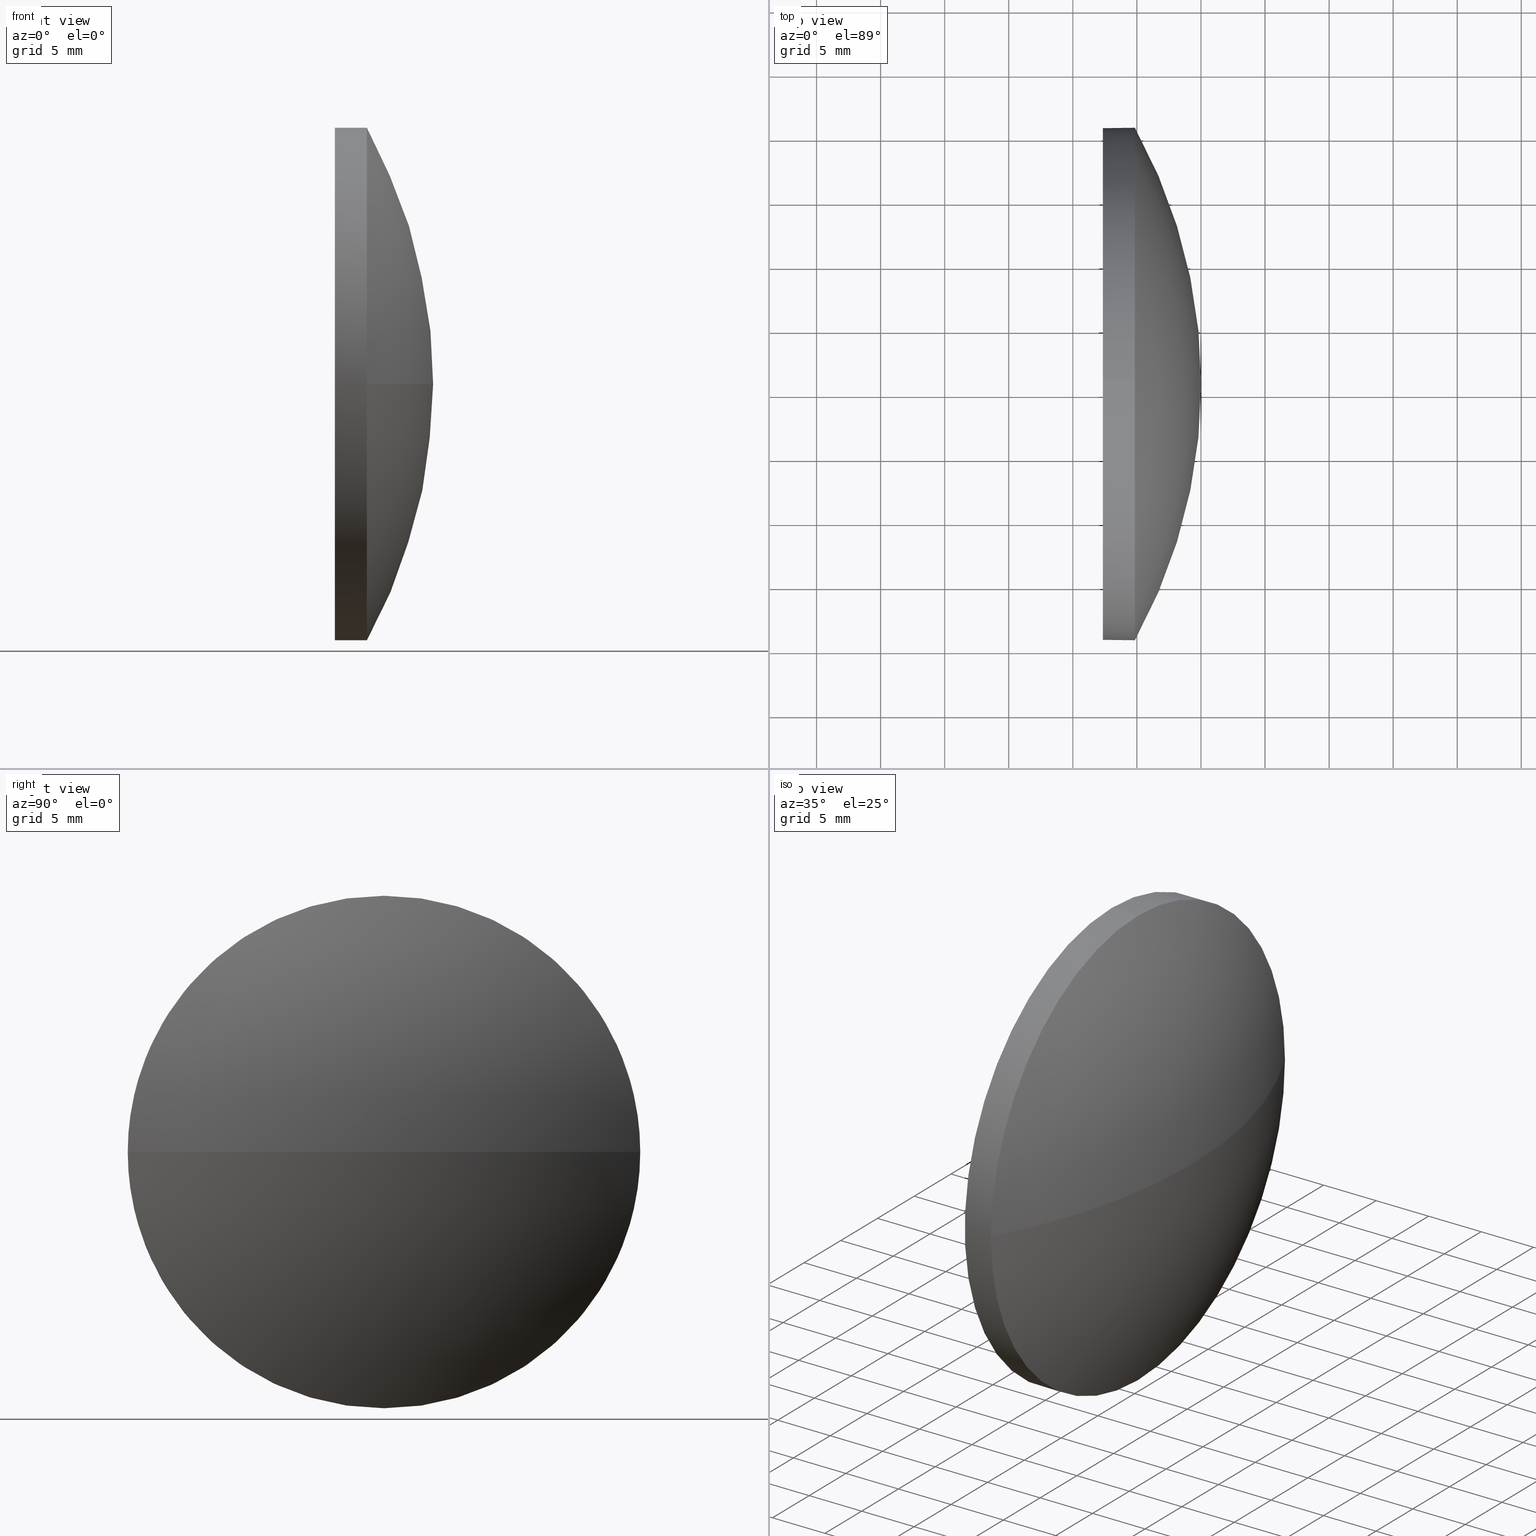
[diagram: canonical four-view strip — front | top / right | iso, engineering-drawing reading convention]
A machine part, canonical four-view strip (front | top / right | iso — engineering-drawing reading convention). The complete STEP part file that produces these views, byte-faithful:
ISO-10303-21;
HEADER;
FILE_DESCRIPTION (( 'STEP AP214' ),
    '1' );
FILE_NAME ('100143.STEP',
    '2019-05-15T06:46:00',
    ( '' ),
    ( '' ),
    'SwSTEP 2.0',
    'SolidWorks 2016',
    '' );
FILE_SCHEMA (( 'AUTOMOTIVE_DESIGN' ));
ENDSEC;

DATA;
#1 = SPHERICAL_SURFACE ( 'NONE', #53, 41.26971953578339500 ) ;
#2 = DIRECTION ( 'NONE',  ( 0.0000000000000000000, 0.0000000000000000000, 1.000000000000000000 ) ) ;
#3 = EDGE_LOOP ( 'NONE', ( #62, #101, #54, #8 ) ) ;
#4 = CARTESIAN_POINT ( 'NONE',  ( 413.7439702576252800, 15.68604631740492600, 0.0000000000000000000 ) ) ;
#5 = FILL_AREA_STYLE_COLOUR ( '', #93 ) ;
#6 = CARTESIAN_POINT ( 'NONE',  ( 0.0000000000000000000, 0.0000000000000000000, 0.0000000000000000000 ) ) ;
#7 = DIRECTION ( 'NONE',  ( 0.0000000000000000000, 0.0000000000000000000, 1.000000000000000000 ) ) ;
#8 = ORIENTED_EDGE ( 'NONE', *, *, #34, .F. ) ;
#9 = LINE ( 'NONE', #152, #27 ) ;
#10 = CARTESIAN_POINT ( 'NONE',  ( 447.3436897934086600, 15.68604631740493000, 0.0000000000000000000 ) ) ;
#11 = ORIENTED_EDGE ( 'NONE', *, *, #34, .T. ) ;
#12 = AXIS2_PLACEMENT_3D ( 'NONE', #130, #41, #77 ) ;
#13 =( LENGTH_UNIT ( ) NAMED_UNIT ( * ) SI_UNIT ( .MILLI., .METRE. ) );
#14 = FILL_AREA_STYLE_COLOUR ( '', #30 ) ;
#15 = ORIENTED_EDGE ( 'NONE', *, *, #178, .F. ) ;
#16 = ORIENTED_EDGE ( 'NONE', *, *, #123, .T. ) ;
#17 = PLANE ( 'NONE',  #167 ) ;
#18 = DIRECTION ( 'NONE',  ( -1.000000000000000000, -0.0000000000000000000, -0.0000000000000000000 ) ) ;
#19 = SURFACE_STYLE_FILL_AREA ( #68 ) ;
#20 = DIRECTION ( 'NONE',  ( 0.0000000000000000000, 0.0000000000000000000, 1.000000000000000000 ) ) ;
#21 = MANIFOLD_SOLID_BREP ( '��ת2', #33 ) ;
#22 = DIRECTION ( 'NONE',  ( 0.0000000000000000000, 1.000000000000000000, 0.0000000000000000000 ) ) ;
#23 = CIRCLE ( 'NONE', #180, 19.99999999999999600 ) ;
#24 = APPLICATION_CONTEXT ( 'automotive_design' ) ;
#25 = ORIENTED_EDGE ( 'NONE', *, *, #74, .T. ) ;
#26 = UNCERTAINTY_MEASURE_WITH_UNIT (LENGTH_MEASURE( 1.000000000000000100E-005 ), #136, 'distance_accuracy_value', 'NONE');
#27 = VECTOR ( 'NONE', #72, 1000.000000000000000 ) ;
#28 =( NAMED_UNIT ( * ) PLANE_ANGLE_UNIT ( ) SI_UNIT ( $, .RADIAN. ) );
#29 = CARTESIAN_POINT ( 'NONE',  ( 413.7439702576252800, 15.68604631740492600, 0.0000000000000000000 ) ) ;
#30 = COLOUR_RGB ( '',1.000000000000000000, 1.000000000000000000, 1.000000000000000000 ) ;
#31 = DIRECTION ( 'NONE',  ( 0.0000000000000000000, 0.0000000000000000000, 1.000000000000000000 ) ) ;
#32 = DIRECTION ( 'NONE',  ( 0.0000000000000000000, 0.0000000000000000000, -1.000000000000000000 ) ) ;
#33 = CLOSED_SHELL ( 'NONE', ( #112, #184, #125, #185, #70 ) ) ;
#34 = EDGE_CURVE ( 'NONE', #165, #90, #163, .T. ) ;
#35 = APPLICATION_PROTOCOL_DEFINITION ( 'draft international standard', 'automotive_design', 1998, #135 ) ;
#36 = EDGE_CURVE ( 'NONE', #90, #107, #9, .T. ) ;
#37 = DIRECTION ( 'NONE',  ( -1.000000000000000000, -0.0000000000000000000, -0.0000000000000000000 ) ) ;
#38 = ORIENTED_EDGE ( 'NONE', *, *, #139, .F. ) ;
#39 = ORIENTED_EDGE ( 'NONE', *, *, #74, .F. ) ;
#40 = EDGE_CURVE ( 'NONE', #145, #99, #166, .T. ) ;
#41 = DIRECTION ( 'NONE',  ( -1.000000000000000000, -0.0000000000000000000, -0.0000000000000000000 ) ) ;
#42 = ORIENTED_EDGE ( 'NONE', *, *, #49, .F. ) ;
#43 = PRODUCT_DEFINITION_CONTEXT ( 'detailed design', #135, 'design' ) ;
#44 = DIRECTION ( 'NONE',  ( 0.0000000000000000000, 1.224646799147353200E-016, -1.000000000000000000 ) ) ;
#45 =( NAMED_UNIT ( * ) PLANE_ANGLE_UNIT ( ) SI_UNIT ( $, .RADIAN. ) );
#46 = EDGE_CURVE ( 'NONE', #141, #181, #59, .T. ) ;
#47 = PRESENTATION_STYLE_ASSIGNMENT (( #143 ) ) ;
#48 = ORIENTED_EDGE ( 'NONE', *, *, #36, .T. ) ;
#49 = EDGE_CURVE ( 'NONE', #181, #145, #23, .T. ) ;
#50 = ORIENTED_EDGE ( 'NONE', *, *, #173, .T. ) ;
#51 = PRESENTATION_LAYER_ASSIGNMENT (  '', '', ( #55 ) ) ;
#52 =( NAMED_UNIT ( * ) SI_UNIT ( $, .STERADIAN. ) SOLID_ANGLE_UNIT ( ) );
#53 = AXIS2_PLACEMENT_3D ( 'NONE', #29, #58, #22 ) ;
#54 = ORIENTED_EDGE ( 'NONE', *, *, #123, .F. ) ;
#55 = STYLED_ITEM ( 'NONE', ( #47 ), #21 ) ;
#56 = DIRECTION ( 'NONE',  ( -0.0000000000000000000, 0.0000000000000000000, 1.000000000000000000 ) ) ;
#57 = CARTESIAN_POINT ( 'NONE',  ( 413.7439702576252800, 15.68604631740492600, 0.0000000000000000000 ) ) ;
#58 = DIRECTION ( 'NONE',  ( -0.0000000000000000000, 0.0000000000000000000, -1.000000000000000000 ) ) ;
#59 = CIRCLE ( 'NONE', #142, 41.26971953578340200 ) ;
#60 = CARTESIAN_POINT ( 'NONE',  ( 447.3436897934086600, 15.68604631740493000, 0.0000000000000000000 ) ) ;
#61 = CARTESIAN_POINT ( 'NONE',  ( 413.7439702576252800, 15.68604631740492600, 0.0000000000000000000 ) ) ;
#62 = ORIENTED_EDGE ( 'NONE', *, *, #173, .F. ) ;
#63 =( NAMED_UNIT ( * ) SI_UNIT ( $, .STERADIAN. ) SOLID_ANGLE_UNIT ( ) );
#64 = CARTESIAN_POINT ( 'NONE',  ( 449.8436897934086600, -4.313953682595074400, -2.449293598294707300E-015 ) ) ;
#65 = AXIS2_PLACEMENT_3D ( 'NONE', #4, #138, #108 ) ;
#66 = UNCERTAINTY_MEASURE_WITH_UNIT (LENGTH_MEASURE( 1.000000000000000100E-005 ), #140, 'distance_accuracy_value', 'NONE');
#67 = PRODUCT_DEFINITION_FORMATION_WITH_SPECIFIED_SOURCE ( '�κ�', '', #116, .NOT_KNOWN. ) ;
#68 = FILL_AREA_STYLE ('',( #14 ) ) ;
#69 = CARTESIAN_POINT ( 'NONE',  ( 442.6491466128316000, 15.68604631740493400, -19.99999999999999600 ) ) ;
#70 = ADVANCED_FACE ( 'NONE', ( #153 ), #17, .F. ) ;
#71 = AXIS2_PLACEMENT_3D ( 'NONE', #104, #18, #134 ) ;
#72 = DIRECTION ( 'NONE',  ( -1.000000000000000000, -0.0000000000000000000, -0.0000000000000000000 ) ) ;
#73 = SURFACE_SIDE_STYLE ('',( #19 ) ) ;
#74 = EDGE_CURVE ( 'NONE', #145, #165, #175, .T. ) ;
#75 = PRODUCT_DEFINITION ( 'δ֪', '', #67, #43 ) ;
#76 = DIRECTION ( 'NONE',  ( -1.000000000000000000, -0.0000000000000000000, -0.0000000000000000000 ) ) ;
#77 = DIRECTION ( 'NONE',  ( 0.0000000000000000000, 0.0000000000000000000, 1.000000000000000000 ) ) ;
#78 =( NAMED_UNIT ( * ) PLANE_ANGLE_UNIT ( ) SI_UNIT ( $, .RADIAN. ) );
#79 = DIRECTION ( 'NONE',  ( 0.0000000000000000000, 0.0000000000000000000, 1.000000000000000000 ) ) ;
#80 = MECHANICAL_DESIGN_GEOMETRIC_PRESENTATION_REPRESENTATION (  '', ( #55 ), #111 ) ;
#81 = DIRECTION ( 'NONE',  ( -1.000000000000000000, -0.0000000000000000000, -0.0000000000000000000 ) ) ;
#82 = SHAPE_DEFINITION_REPRESENTATION ( #182, #129 ) ;
#83 = STYLED_ITEM ( 'NONE', ( #103 ), #129 ) ;
#84 = ORIENTED_EDGE ( 'NONE', *, *, #49, .T. ) ;
#85 = FACE_OUTER_BOUND ( 'NONE', #100, .T. ) ;
#86 = CYLINDRICAL_SURFACE ( 'NONE', #127, 19.99999999999999600 ) ;
#87 = AXIS2_PLACEMENT_3D ( 'NONE', #61, #44, #162 ) ;
#88 = CARTESIAN_POINT ( 'NONE',  ( 449.8436897934086600, 15.68604631740493000, 0.0000000000000000000 ) ) ;
#89 = ORIENTED_EDGE ( 'NONE', *, *, #40, .F. ) ;
#90 = VERTEX_POINT ( 'NONE', #171 ) ;
#91 = DIRECTION ( 'NONE',  ( -1.000000000000000000, -0.0000000000000000000, -0.0000000000000000000 ) ) ;
#92 = DIRECTION ( 'NONE',  ( 0.0000000000000000000, 0.0000000000000000000, 1.000000000000000000 ) ) ;
#93 = COLOUR_RGB ( '',1.000000000000000000, 1.000000000000000000, 1.000000000000000000 ) ;
#94 = FACE_OUTER_BOUND ( 'NONE', #113, .T. ) ;
#95 = CARTESIAN_POINT ( 'NONE',  ( 442.6491466128316000, 15.68604631740493000, 0.0000000000000000000 ) ) ;
#96 = PRODUCT_CONTEXT ( 'NONE', #24, 'mechanical' ) ;
#97 = CYLINDRICAL_SURFACE ( 'NONE', #98, 19.99999999999999600 ) ;
#98 = AXIS2_PLACEMENT_3D ( 'NONE', #95, #160, #7 ) ;
#99 = VERTEX_POINT ( 'NONE', #144 ) ;
#100 = EDGE_LOOP ( 'NONE', ( #89, #25, #11, #48, #38 ) ) ;
#101 = ORIENTED_EDGE ( 'NONE', *, *, #46, .T. ) ;
#102 = ORIENTED_EDGE ( 'NONE', *, *, #139, .T. ) ;
#103 = PRESENTATION_STYLE_ASSIGNMENT (( #119 ) ) ;
#104 = CARTESIAN_POINT ( 'NONE',  ( 449.8436897934086600, 15.68604631740493000, 0.0000000000000000000 ) ) ;
#105 = DIRECTION ( 'NONE',  ( 1.000000000000000000, 0.0000000000000000000, 0.0000000000000000000 ) ) ;
#106 = APPLICATION_PROTOCOL_DEFINITION ( 'draft international standard', 'automotive_design', 1998, #24 ) ;
#107 = VERTEX_POINT ( 'NONE', #159 ) ;
#108 = DIRECTION ( 'NONE',  ( 0.0000000000000000000, 1.000000000000000000, 0.0000000000000000000 ) ) ;
#109 = DIRECTION ( 'NONE',  ( 0.0000000000000000000, 0.0000000000000000000, 1.000000000000000000 ) ) ;
#110 = SURFACE_STYLE_FILL_AREA ( #177 ) ;
#111 =( GEOMETRIC_REPRESENTATION_CONTEXT ( 3 ) GLOBAL_UNCERTAINTY_ASSIGNED_CONTEXT ( ( #126 ) ) GLOBAL_UNIT_ASSIGNED_CONTEXT ( ( #13, #28, #52 ) ) REPRESENTATION_CONTEXT ( 'NONE', 'WORKASPACE' ) );
#112 = ADVANCED_FACE ( 'NONE', ( #94 ), #86, .T. ) ;
#113 = EDGE_LOOP ( 'NONE', ( #84, #137, #15, #168, #16 ) ) ;
#114 = AXIS2_PLACEMENT_3D ( 'NONE', #6, #109, #161 ) ;
#115 = CIRCLE ( 'NONE', #170, 19.99999999999999600 ) ;
#116 = PRODUCT ( '100143', '100143', '', ( #96 ) ) ;
#117 = DIRECTION ( 'NONE',  ( -1.000000000000000000, -0.0000000000000000000, -0.0000000000000000000 ) ) ;
#118 = FACE_OUTER_BOUND ( 'NONE', #3, .T. ) ;
#119 = SURFACE_STYLE_USAGE ( .BOTH. , #121 ) ;
#120 = ORIENTED_EDGE ( 'NONE', *, *, #178, .T. ) ;
#121 = SURFACE_SIDE_STYLE ('',( #110 ) ) ;
#122 = VECTOR ( 'NONE', #154, 1000.000000000000000 ) ;
#123 = EDGE_CURVE ( 'NONE', #90, #181, #169, .T. ) ;
#124 = CARTESIAN_POINT ( 'NONE',  ( 449.8436897934086600, 35.68604631740493700, 0.0000000000000000000 ) ) ;
#125 = ADVANCED_FACE ( 'NONE', ( #118 ), #1, .T. ) ;
#126 = UNCERTAINTY_MEASURE_WITH_UNIT (LENGTH_MEASURE( 1.000000000000000100E-005 ), #13, 'distance_accuracy_value', 'NONE');
#127 = AXIS2_PLACEMENT_3D ( 'NONE', #157, #76, #92 ) ;
#128 = ORIENTED_EDGE ( 'NONE', *, *, #46, .F. ) ;
#129 = ADVANCED_BREP_SHAPE_REPRESENTATION ( '100143', ( #21, #114 ), #164 ) ;
#130 = CARTESIAN_POINT ( 'NONE',  ( 449.8436897934086600, 15.68604631740493000, 0.0000000000000000000 ) ) ;
#131 = AXIS2_PLACEMENT_3D ( 'NONE', #88, #117, #31 ) ;
#132 = MECHANICAL_DESIGN_GEOMETRIC_PRESENTATION_REPRESENTATION (  '', ( #83 ), #186 ) ;
#133 = CIRCLE ( 'NONE', #87, 41.26971953578338800 ) ;
#134 = DIRECTION ( 'NONE',  ( 0.0000000000000000000, 0.0000000000000000000, 1.000000000000000000 ) ) ;
#135 = APPLICATION_CONTEXT ( 'automotive_design' ) ;
#136 =( LENGTH_UNIT ( ) NAMED_UNIT ( * ) SI_UNIT ( .MILLI., .METRE. ) );
#137 = ORIENTED_EDGE ( 'NONE', *, *, #40, .T. ) ;
#138 = DIRECTION ( 'NONE',  ( -0.0000000000000000000, 0.0000000000000000000, -1.000000000000000000 ) ) ;
#139 = EDGE_CURVE ( 'NONE', #99, #107, #151, .T. ) ;
#140 =( LENGTH_UNIT ( ) NAMED_UNIT ( * ) SI_UNIT ( .MILLI., .METRE. ) );
#141 = VERTEX_POINT ( 'NONE', #146 ) ;
#142 = AXIS2_PLACEMENT_3D ( 'NONE', #57, #56, #172 ) ;
#143 = SURFACE_STYLE_USAGE ( .BOTH. , #73 ) ;
#144 = CARTESIAN_POINT ( 'NONE',  ( 447.3436897934086600, 15.68604631740493400, -19.99999999999999600 ) ) ;
#145 = VERTEX_POINT ( 'NONE', #179 ) ;
#146 = CARTESIAN_POINT ( 'NONE',  ( 455.0136897934086700, 15.68604631740493000, 0.0000000000000000000 ) ) ;
#147 = CARTESIAN_POINT ( 'NONE',  ( 447.3436897934086600, 15.68604631740493000, 0.0000000000000000000 ) ) ;
#148 =( NAMED_UNIT ( * ) SI_UNIT ( $, .STERADIAN. ) SOLID_ANGLE_UNIT ( ) );
#149 = SPHERICAL_SURFACE ( 'NONE', #65, 41.26971953578339500 ) ;
#150 = EDGE_LOOP ( 'NONE', ( #120, #102 ) ) ;
#151 = CIRCLE ( 'NONE', #156, 19.99999999999999600 ) ;
#152 = CARTESIAN_POINT ( 'NONE',  ( 442.6491466128316000, 15.68604631740493000, 19.99999999999999600 ) ) ;
#153 = FACE_OUTER_BOUND ( 'NONE', #150, .T. ) ;
#154 = DIRECTION ( 'NONE',  ( -1.000000000000000000, -0.0000000000000000000, -0.0000000000000000000 ) ) ;
#155 = EDGE_LOOP ( 'NONE', ( #128, #50, #39, #42 ) ) ;
#156 = AXIS2_PLACEMENT_3D ( 'NONE', #147, #81, #20 ) ;
#157 = CARTESIAN_POINT ( 'NONE',  ( 442.6491466128316000, 15.68604631740493000, 0.0000000000000000000 ) ) ;
#158 = PRODUCT_RELATED_PRODUCT_CATEGORY ( 'part', '', ( #116 ) ) ;
#159 = CARTESIAN_POINT ( 'NONE',  ( 447.3436897934086600, 15.68604631740493000, 19.99999999999999600 ) ) ;
#160 = DIRECTION ( 'NONE',  ( -1.000000000000000000, -0.0000000000000000000, -0.0000000000000000000 ) ) ;
#161 = DIRECTION ( 'NONE',  ( 1.000000000000000000, 0.0000000000000000000, 0.0000000000000000000 ) ) ;
#162 = DIRECTION ( 'NONE',  ( 0.0000000000000000000, 1.000000000000000000, 1.224646799147353500E-016 ) ) ;
#163 = CIRCLE ( 'NONE', #131, 19.99999999999999600 ) ;
#164 =( GEOMETRIC_REPRESENTATION_CONTEXT ( 3 ) GLOBAL_UNCERTAINTY_ASSIGNED_CONTEXT ( ( #66 ) ) GLOBAL_UNIT_ASSIGNED_CONTEXT ( ( #140, #78, #148 ) ) REPRESENTATION_CONTEXT ( 'NONE', 'WORKASPACE' ) );
#165 = VERTEX_POINT ( 'NONE', #64 ) ;
#166 = LINE ( 'NONE', #69, #122 ) ;
#167 = AXIS2_PLACEMENT_3D ( 'NONE', #60, #105, #32 ) ;
#168 = ORIENTED_EDGE ( 'NONE', *, *, #36, .F. ) ;
#169 = CIRCLE ( 'NONE', #12, 19.99999999999999600 ) ;
#170 = AXIS2_PLACEMENT_3D ( 'NONE', #10, #37, #79 ) ;
#171 = CARTESIAN_POINT ( 'NONE',  ( 449.8436897934086600, 15.68604631740493000, 19.99999999999999600 ) ) ;
#172 = DIRECTION ( 'NONE',  ( 1.000000000000000000, 0.0000000000000000000, 0.0000000000000000000 ) ) ;
#173 = EDGE_CURVE ( 'NONE', #141, #165, #133, .T. ) ;
#174 = CARTESIAN_POINT ( 'NONE',  ( 449.8436897934086600, 15.68604631740493000, 0.0000000000000000000 ) ) ;
#175 = CIRCLE ( 'NONE', #71, 19.99999999999999600 ) ;
#176 = PRESENTATION_LAYER_ASSIGNMENT (  '', '', ( #83 ) ) ;
#177 = FILL_AREA_STYLE ('',( #5 ) ) ;
#178 = EDGE_CURVE ( 'NONE', #107, #99, #115, .T. ) ;
#179 = CARTESIAN_POINT ( 'NONE',  ( 449.8436897934086600, 15.68604631740493400, -19.99999999999999600 ) ) ;
#180 = AXIS2_PLACEMENT_3D ( 'NONE', #174, #91, #2 ) ;
#181 = VERTEX_POINT ( 'NONE', #124 ) ;
#182 = PRODUCT_DEFINITION_SHAPE ( 'NONE', 'NONE',  #75 ) ;
#183 = FACE_OUTER_BOUND ( 'NONE', #155, .T. ) ;
#184 = ADVANCED_FACE ( 'NONE', ( #183 ), #149, .T. ) ;
#185 = ADVANCED_FACE ( 'NONE', ( #85 ), #97, .T. ) ;
#186 =( GEOMETRIC_REPRESENTATION_CONTEXT ( 3 ) GLOBAL_UNCERTAINTY_ASSIGNED_CONTEXT ( ( #26 ) ) GLOBAL_UNIT_ASSIGNED_CONTEXT ( ( #136, #45, #63 ) ) REPRESENTATION_CONTEXT ( 'NONE', 'WORKASPACE' ) );
ENDSEC;
END-ISO-10303-21;
